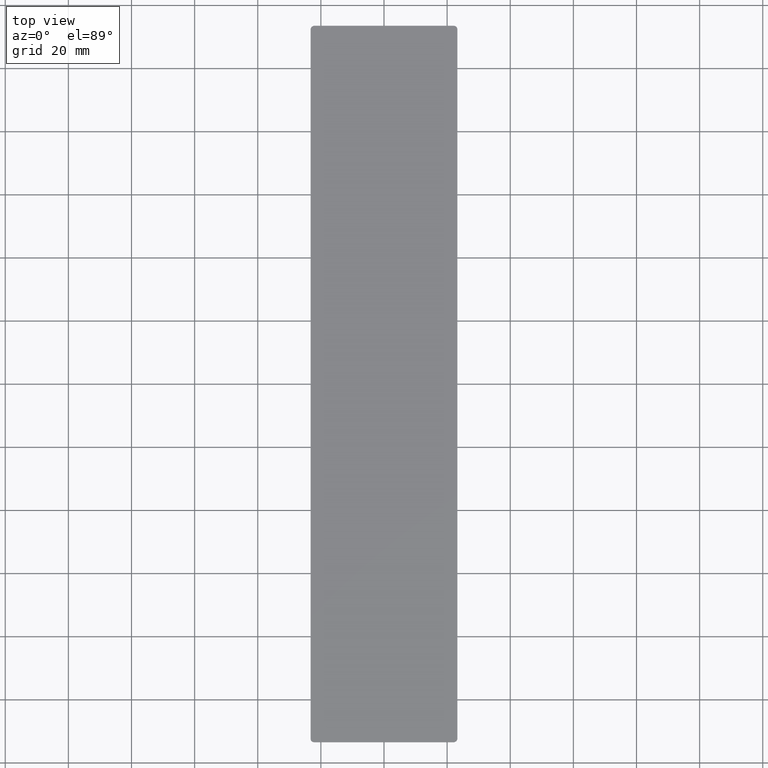
[diagram: clean part render]
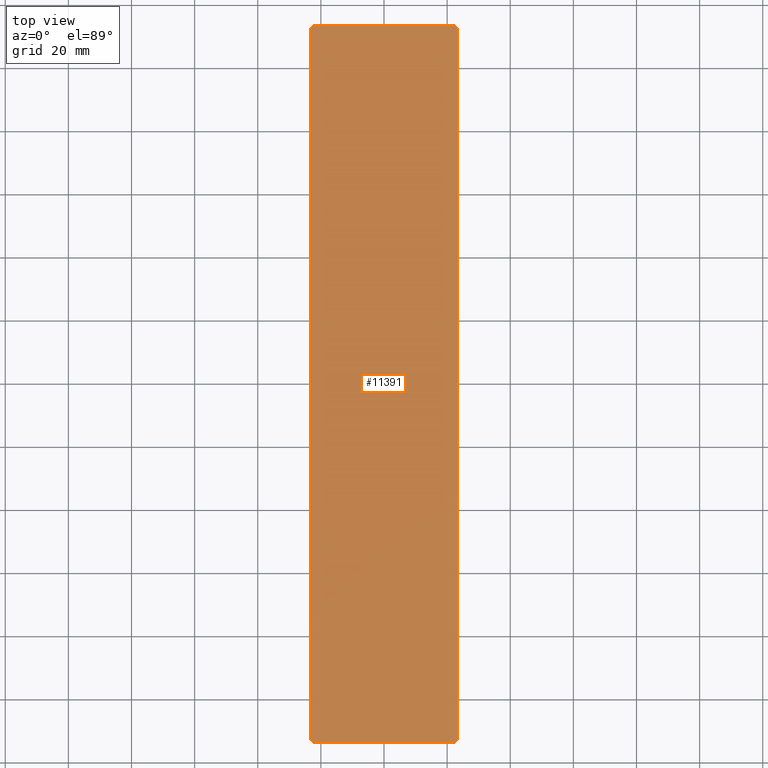
[diagram: same view with one face highlighted and labeled with its STEP entity id]
A machine part, top view. The second image highlights one B-rep face of the part: STEP entity #11391.
In plain terms, the highlighted planar face has unit normal (-0, 0, 1).
Its self-contained STEP definition (entity closure, byte-faithful):
#248 = VERTEX_POINT ( 'NONE', #11962 ) ;
#252 = ORIENTED_EDGE ( 'NONE', *, *, #1222, .T. ) ;
#645 = CARTESIAN_POINT ( 'NONE',  ( 23.24999999999998200, 113.5000000000000100, 1.500000000000000000 ) ) ;
#1028 = LINE ( 'NONE', #7267, #11524 ) ;
#1143 = DIRECTION ( 'NONE',  ( 1.222712582186295900E-016, -1.000000000000000000, 0.0000000000000000000 ) ) ;
#1147 = VERTEX_POINT ( 'NONE', #11356 ) ;
#1222 = EDGE_CURVE ( 'NONE', #248, #11994, #7808, .T. ) ;
#1309 = VECTOR ( 'NONE', #10677, 1000.000000000000000 ) ;
#2237 = EDGE_CURVE ( 'NONE', #11941, #4350, #4216, .T. ) ;
#2546 = ORIENTED_EDGE ( 'NONE', *, *, #6856, .F. ) ;
#2599 = CARTESIAN_POINT ( 'NONE',  ( 22.04999999999998300, 112.3000000000000100, 1.500000000000000000 ) ) ;
#2987 = CARTESIAN_POINT ( 'NONE',  ( 22.04999999999996900, 113.5000000000000100, 1.500000000000000000 ) ) ;
#3386 = ORIENTED_EDGE ( 'NONE', *, *, #12117, .F. ) ;
#3442 = CARTESIAN_POINT ( 'NONE',  ( 22.05000000000001100, -112.2999999999999800, 1.500000000000000000 ) ) ;
#3467 = PLANE ( 'NONE',  #9429 ) ;
#3591 = CARTESIAN_POINT ( 'NONE',  ( 23.25000000000001100, -112.2999999999999300, 1.500000000000000000 ) ) ;
#3830 = ORIENTED_EDGE ( 'NONE', *, *, #2237, .T. ) ;
#4006 = VERTEX_POINT ( 'NONE', #7142 ) ;
#4079 = ORIENTED_EDGE ( 'NONE', *, *, #7785, .T. ) ;
#4216 = CIRCLE ( 'NONE', #10254, 1.199999999999999700 ) ;
#4244 = EDGE_CURVE ( 'NONE', #4350, #7091, #1028, .T. ) ;
#4350 = VERTEX_POINT ( 'NONE', #7587 ) ;
#5036 = VERTEX_POINT ( 'NONE', #2987 ) ;
#5127 = LINE ( 'NONE', #11741, #1309 ) ;
#5487 = DIRECTION ( 'NONE',  ( 1.000000000000000000, 0.0000000000000000000, 0.0000000000000000000 ) ) ;
#5602 = AXIS2_PLACEMENT_3D ( 'NONE', #11722, #5773, #5635 ) ;
#5635 = DIRECTION ( 'NONE',  ( 1.000000000000000000, 0.0000000000000000000, 0.0000000000000000000 ) ) ;
#5773 = DIRECTION ( 'NONE',  ( -0.0000000000000000000, 0.0000000000000000000, 1.000000000000000000 ) ) ;
#5796 = CARTESIAN_POINT ( 'NONE',  ( -23.24999999999998900, -112.2999999999999300, 1.500000000000000000 ) ) ;
#5895 = CIRCLE ( 'NONE', #5602, 1.199999999999999700 ) ;
#6595 = ORIENTED_EDGE ( 'NONE', *, *, #4244, .T. ) ;
#6803 = AXIS2_PLACEMENT_3D ( 'NONE', #2599, #9688, #10803 ) ;
#6856 = EDGE_CURVE ( 'NONE', #11941, #5036, #8611, .T. ) ;
#7000 = EDGE_CURVE ( 'NONE', #1147, #248, #5127, .T. ) ;
#7091 = VERTEX_POINT ( 'NONE', #5796 ) ;
#7142 = CARTESIAN_POINT ( 'NONE',  ( 23.24999999999998200, 112.3000000000000100, 1.500000000000000000 ) ) ;
#7164 = ORIENTED_EDGE ( 'NONE', *, *, #10665, .T. ) ;
#7267 = CARTESIAN_POINT ( 'NONE',  ( -23.25000000000001800, 113.5000000000000100, 1.500000000000000000 ) ) ;
#7380 = DIRECTION ( 'NONE',  ( 1.222712582186295900E-016, -1.000000000000000000, 0.0000000000000000000 ) ) ;
#7587 = CARTESIAN_POINT ( 'NONE',  ( -23.25000000000001800, 112.3000000000000100, 1.500000000000000000 ) ) ;
#7644 = CARTESIAN_POINT ( 'NONE',  ( 0.0000000000000000000, 0.0000000000000000000, 1.500000000000000000 ) ) ;
#7701 = EDGE_LOOP ( 'NONE', ( #2546, #3830, #6595, #7164, #11867, #252, #3386, #4079 ) ) ;
#7785 = EDGE_CURVE ( 'NONE', #4006, #5036, #8772, .T. ) ;
#7808 = CIRCLE ( 'NONE', #9310, 1.199999999999999700 ) ;
#8611 = LINE ( 'NONE', #11346, #12906 ) ;
#8627 = DIRECTION ( 'NONE',  ( 1.000000000000000000, 0.0000000000000000000, 0.0000000000000000000 ) ) ;
#8772 = CIRCLE ( 'NONE', #6803, 1.199999999999999700 ) ;
#9310 = AXIS2_PLACEMENT_3D ( 'NONE', #3442, #11575, #5487 ) ;
#9429 = AXIS2_PLACEMENT_3D ( 'NONE', #7644, #11597, #8627 ) ;
#9688 = DIRECTION ( 'NONE',  ( -0.0000000000000000000, 0.0000000000000000000, 1.000000000000000000 ) ) ;
#9853 = FACE_OUTER_BOUND ( 'NONE', #7701, .T. ) ;
#10254 = AXIS2_PLACEMENT_3D ( 'NONE', #11156, #12291, #11324 ) ;
#10665 = EDGE_CURVE ( 'NONE', #7091, #1147, #5895, .T. ) ;
#10677 = DIRECTION ( 'NONE',  ( 1.000000000000000000, 0.0000000000000000000, 0.0000000000000000000 ) ) ;
#10803 = DIRECTION ( 'NONE',  ( 1.000000000000000000, 0.0000000000000000000, 0.0000000000000000000 ) ) ;
#11156 = CARTESIAN_POINT ( 'NONE',  ( -22.05000000000001800, 112.3000000000000100, 1.500000000000000000 ) ) ;
#11324 = DIRECTION ( 'NONE',  ( 1.000000000000000000, 0.0000000000000000000, 0.0000000000000000000 ) ) ;
#11346 = CARTESIAN_POINT ( 'NONE',  ( -23.25000000000001800, 113.5000000000000100, 1.500000000000000000 ) ) ;
#11356 = CARTESIAN_POINT ( 'NONE',  ( -22.04999999999999000, -113.4999999999999900, 1.500000000000000000 ) ) ;
#11391 = ADVANCED_FACE ( 'NONE', ( #9853 ), #3467, .T. ) ;
#11426 = VECTOR ( 'NONE', #7380, 1000.000000000000000 ) ;
#11499 = CARTESIAN_POINT ( 'NONE',  ( -22.05000000000001800, 113.5000000000000100, 1.500000000000000000 ) ) ;
#11524 = VECTOR ( 'NONE', #1143, 1000.000000000000000 ) ;
#11575 = DIRECTION ( 'NONE',  ( -0.0000000000000000000, 0.0000000000000000000, 1.000000000000000000 ) ) ;
#11597 = DIRECTION ( 'NONE',  ( -0.0000000000000000000, 0.0000000000000000000, 1.000000000000000000 ) ) ;
#11722 = CARTESIAN_POINT ( 'NONE',  ( -22.04999999999999000, -112.2999999999999800, 1.500000000000000000 ) ) ;
#11741 = CARTESIAN_POINT ( 'NONE',  ( -23.24999999999998900, -113.4999999999999900, 1.500000000000000000 ) ) ;
#11867 = ORIENTED_EDGE ( 'NONE', *, *, #7000, .T. ) ;
#11941 = VERTEX_POINT ( 'NONE', #11499 ) ;
#11962 = CARTESIAN_POINT ( 'NONE',  ( 22.04999999999999700, -113.4999999999999900, 1.500000000000000000 ) ) ;
#11994 = VERTEX_POINT ( 'NONE', #3591 ) ;
#12117 = EDGE_CURVE ( 'NONE', #4006, #11994, #12530, .T. ) ;
#12291 = DIRECTION ( 'NONE',  ( -0.0000000000000000000, 0.0000000000000000000, 1.000000000000000000 ) ) ;
#12316 = DIRECTION ( 'NONE',  ( 1.000000000000000000, 0.0000000000000000000, 0.0000000000000000000 ) ) ;
#12530 = LINE ( 'NONE', #645, #11426 ) ;
#12906 = VECTOR ( 'NONE', #12316, 1000.000000000000000 ) ;